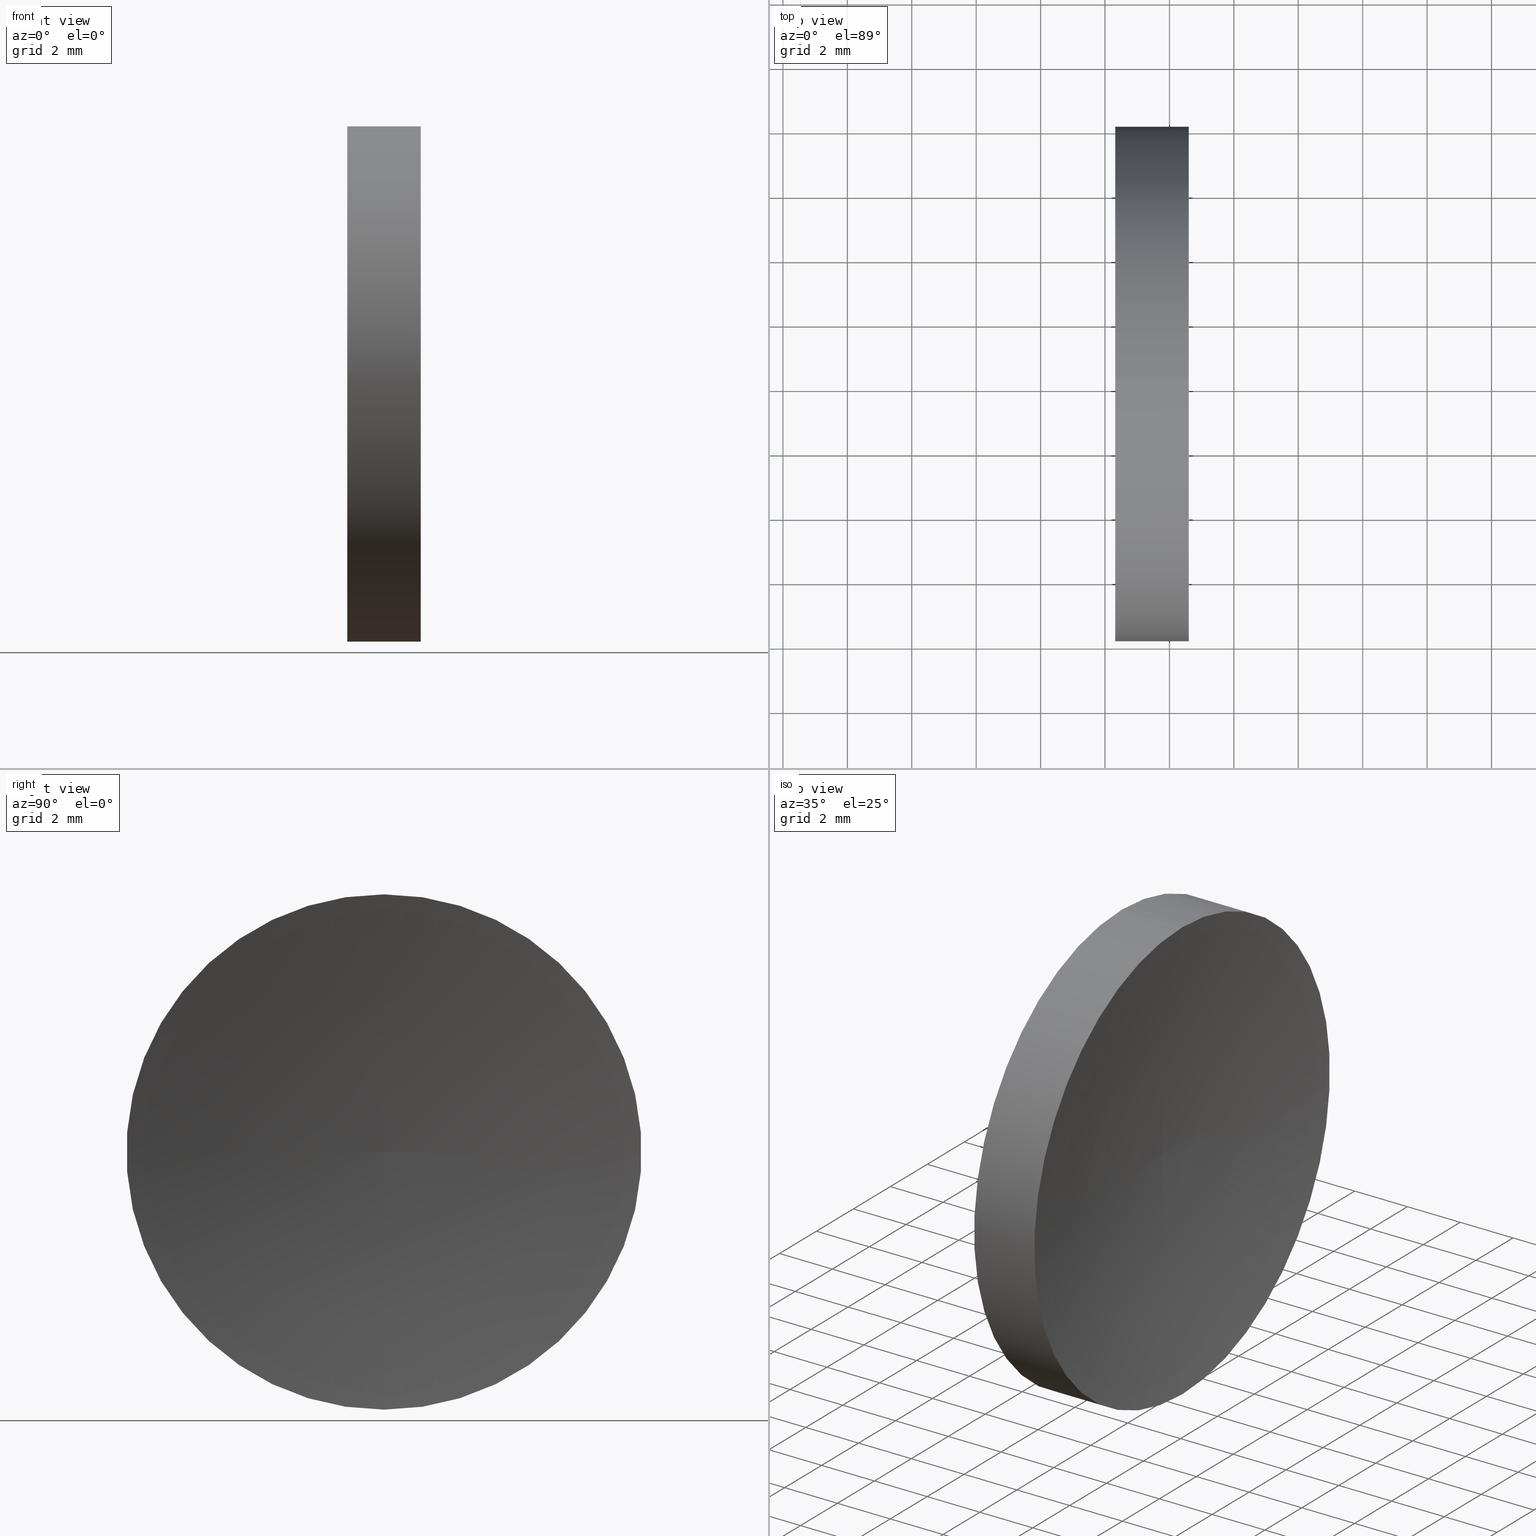
[diagram: canonical four-view strip — front | top / right | iso, engineering-drawing reading convention]
A machine part, canonical four-view strip (front | top / right | iso — engineering-drawing reading convention). The complete STEP part file that produces these views, byte-faithful:
ISO-10303-21;
HEADER;
FILE_DESCRIPTION (( 'STEP AP214' ),
    '1' );
FILE_NAME ('120025.STEP',
    '2019-06-17T01:19:27',
    ( '' ),
    ( '' ),
    'SwSTEP 2.0',
    'SolidWorks 2016',
    '' );
FILE_SCHEMA (( 'AUTOMOTIVE_DESIGN' ));
ENDSEC;

DATA;
#1 = ORIENTED_EDGE ( 'NONE', *, *, #43, .F. ) ;
#2 = COLOUR_RGB ( '',1.000000000000000000, 1.000000000000000000, 1.000000000000000000 ) ;
#3 = PRODUCT_DEFINITION ( 'δ֪', '', #97, #120 ) ;
#4 = AXIS2_PLACEMENT_3D ( 'NONE', #8, #86, #18 ) ;
#5 = ORIENTED_EDGE ( 'NONE', *, *, #160, .F. ) ;
#6 = ORIENTED_EDGE ( 'NONE', *, *, #127, .T. ) ;
#7 = DIRECTION ( 'NONE',  ( 0.0000000000000000000, 0.0000000000000000000, 1.000000000000000000 ) ) ;
#8 = CARTESIAN_POINT ( 'NONE',  ( 44.31915269315436500, 26.08904114919495900, 0.0000000000000000000 ) ) ;
#9 = ORIENTED_EDGE ( 'NONE', *, *, #85, .F. ) ;
#10 = ORIENTED_EDGE ( 'NONE', *, *, #85, .T. ) ;
#11 = COLOUR_RGB ( '',1.000000000000000000, 1.000000000000000000, 1.000000000000000000 ) ;
#12 = ADVANCED_FACE ( 'NONE', ( #69 ), #36, .T. ) ;
#13 = ADVANCED_BREP_SHAPE_REPRESENTATION ( '120025', ( #101, #137 ), #40 ) ;
#14 = CIRCLE ( 'NONE', #67, 41.30000000000000400 ) ;
#15 = TOROIDAL_SURFACE ( 'NONE', #92, 0.01486581670328071500, 41.30000000000000400 ) ;
#16 = AXIS2_PLACEMENT_3D ( 'NONE', #115, #64, #155 ) ;
#17 = ORIENTED_EDGE ( 'NONE', *, *, #127, .F. ) ;
#18 = DIRECTION ( 'NONE',  ( 0.0000000000000000000, 0.0000000000000000000, 1.000000000000000000 ) ) ;
#19 = CARTESIAN_POINT ( 'NONE',  ( 87.11915005658917700, 26.08904114919495900, 0.0000000000000000000 ) ) ;
#20 = AXIS2_PLACEMENT_3D ( 'NONE', #45, #87, #7 ) ;
#21 = SHAPE_DEFINITION_REPRESENTATION ( #132, #13 ) ;
#22 = DIRECTION ( 'NONE',  ( -1.000000000000000000, -0.0000000000000000000, -0.0000000000000000000 ) ) ;
#23 = SURFACE_SIDE_STYLE ('',( #49 ) ) ;
#24 = VERTEX_POINT ( 'NONE', #139 ) ;
#25 = ADVANCED_FACE ( 'NONE', ( #83 ), #15, .F. ) ;
#26 = STYLED_ITEM ( 'NONE', ( #149 ), #13 ) ;
#27 = MECHANICAL_DESIGN_GEOMETRIC_PRESENTATION_REPRESENTATION (  '', ( #166 ), #56 ) ;
#28 = SURFACE_STYLE_FILL_AREA ( #50 ) ;
#29 = DIRECTION ( 'NONE',  ( 1.000000000000000000, 0.0000000000000000000, 0.0000000000000000000 ) ) ;
#30 = DIRECTION ( 'NONE',  ( 0.0000000000000000000, 0.0000000000000000000, 1.000000000000000000 ) ) ;
#31 = AXIS2_PLACEMENT_3D ( 'NONE', #154, #22, #66 ) ;
#32 = CARTESIAN_POINT ( 'NONE',  ( 42.44986111413682300, 26.08904114919495900, 0.0000000000000000000 ) ) ;
#33 = SURFACE_STYLE_USAGE ( .BOTH. , #91 ) ;
#34 = APPLICATION_CONTEXT ( 'automotive_design' ) ;
#35 = CARTESIAN_POINT ( 'NONE',  ( 46.59844384267000800, 26.08904114919495900, 0.0000000000000000000 ) ) ;
#36 = CYLINDRICAL_SURFACE ( 'NONE', #110, 8.000000000000000000 ) ;
#37 = SURFACE_STYLE_USAGE ( .BOTH. , #23 ) ;
#38 = PRODUCT ( '120025', '120025', '', ( #79 ) ) ;
#39 = DIRECTION ( 'NONE',  ( 0.0000000000000000000, -8.400597946618919500E-017, 1.000000000000000000 ) ) ;
#40 =( GEOMETRIC_REPRESENTATION_CONTEXT ( 3 ) GLOBAL_UNCERTAINTY_ASSIGNED_CONTEXT ( ( #106 ) ) GLOBAL_UNIT_ASSIGNED_CONTEXT ( ( #54, #80, #119 ) ) REPRESENTATION_CONTEXT ( 'NONE', 'WORKASPACE' ) );
#41 = UNCERTAINTY_MEASURE_WITH_UNIT (LENGTH_MEASURE( 1.000000000000000100E-005 ), #73, 'distance_accuracy_value', 'NONE');
#42 = VECTOR ( 'NONE', #47, 1000.000000000000000 ) ;
#43 = EDGE_CURVE ( 'NONE', #99, #146, #94, .T. ) ;
#44 = CIRCLE ( 'NONE', #20, 7.999999999999996400 ) ;
#45 = CARTESIAN_POINT ( 'NONE',  ( 46.59844384267000800, 26.08904114919495900, 0.0000000000000000000 ) ) ;
#46 = DIRECTION ( 'NONE',  ( 0.0000000000000000000, 0.0000000000000000000, 1.000000000000000000 ) ) ;
#47 = DIRECTION ( 'NONE',  ( -1.000000000000000000, -0.0000000000000000000, -0.0000000000000000000 ) ) ;
#48 = PRODUCT_RELATED_PRODUCT_CATEGORY ( 'part', '', ( #38 ) ) ;
#49 = SURFACE_STYLE_FILL_AREA ( #68 ) ;
#50 = FILL_AREA_STYLE ('',( #116 ) ) ;
#51 = DIRECTION ( 'NONE',  ( -1.000000000000000000, -0.0000000000000000000, -0.0000000000000000000 ) ) ;
#52 = CYLINDRICAL_SURFACE ( 'NONE', #31, 8.000000000000000000 ) ;
#53 = ORIENTED_EDGE ( 'NONE', *, *, #153, .T. ) ;
#54 =( LENGTH_UNIT ( ) NAMED_UNIT ( * ) SI_UNIT ( .MILLI., .METRE. ) );
#55 = ADVANCED_FACE ( 'NONE', ( #138 ), #124, .F. ) ;
#56 =( GEOMETRIC_REPRESENTATION_CONTEXT ( 3 ) GLOBAL_UNCERTAINTY_ASSIGNED_CONTEXT ( ( #134 ) ) GLOBAL_UNIT_ASSIGNED_CONTEXT ( ( #140, #75, #74 ) ) REPRESENTATION_CONTEXT ( 'NONE', 'WORKASPACE' ) );
#57 = AXIS2_PLACEMENT_3D ( 'NONE', #98, #29, #59 ) ;
#58 = ORIENTED_EDGE ( 'NONE', *, *, #95, .F. ) ;
#59 = DIRECTION ( 'NONE',  ( 0.0000000000000000000, 0.0000000000000000000, -1.000000000000000000 ) ) ;
#60 = CARTESIAN_POINT ( 'NONE',  ( 44.31915269315436500, 26.08904114919495900, -8.000000000000003600 ) ) ;
#61 = EDGE_LOOP ( 'NONE', ( #108, #111, #78 ) ) ;
#62 = PRESENTATION_LAYER_ASSIGNMENT (  '', '', ( #26 ) ) ;
#63 = CARTESIAN_POINT ( 'NONE',  ( 45.81915273204332100, 26.08904114919495900, 0.0000000000000000000 ) ) ;
#64 = DIRECTION ( 'NONE',  ( -1.000000000000000000, -0.0000000000000000000, -0.0000000000000000000 ) ) ;
#65 = DIRECTION ( 'NONE',  ( -1.000000000000000000, -0.0000000000000000000, -0.0000000000000000000 ) ) ;
#66 = DIRECTION ( 'NONE',  ( 0.0000000000000000000, 0.0000000000000000000, 1.000000000000000000 ) ) ;
#67 = AXIS2_PLACEMENT_3D ( 'NONE', #131, #105, #39 ) ;
#68 = FILL_AREA_STYLE ('',( #93 ) ) ;
#69 = FACE_OUTER_BOUND ( 'NONE', #103, .T. ) ;
#70 = CIRCLE ( 'NONE', #100, 41.30000000000000400 ) ;
#71 = EDGE_CURVE ( 'NONE', #24, #136, #70, .T. ) ;
#72 = EDGE_CURVE ( 'NONE', #126, #24, #44, .T. ) ;
#73 =( LENGTH_UNIT ( ) NAMED_UNIT ( * ) SI_UNIT ( .MILLI., .METRE. ) );
#74 =( NAMED_UNIT ( * ) SI_UNIT ( $, .STERADIAN. ) SOLID_ANGLE_UNIT ( ) );
#75 =( NAMED_UNIT ( * ) PLANE_ANGLE_UNIT ( ) SI_UNIT ( $, .RADIAN. ) );
#76 = ORIENTED_EDGE ( 'NONE', *, *, #72, .T. ) ;
#77 = DIRECTION ( 'NONE',  ( 0.0000000000000000000, 0.0000000000000000000, 1.000000000000000000 ) ) ;
#78 = ORIENTED_EDGE ( 'NONE', *, *, #71, .F. ) ;
#79 = PRODUCT_CONTEXT ( 'NONE', #163, 'mechanical' ) ;
#80 =( NAMED_UNIT ( * ) PLANE_ANGLE_UNIT ( ) SI_UNIT ( $, .RADIAN. ) );
#81 = CIRCLE ( 'NONE', #109, 7.999999999999996400 ) ;
#82 =( GEOMETRIC_REPRESENTATION_CONTEXT ( 3 ) GLOBAL_UNCERTAINTY_ASSIGNED_CONTEXT ( ( #41 ) ) GLOBAL_UNIT_ASSIGNED_CONTEXT ( ( #73, #129, #156 ) ) REPRESENTATION_CONTEXT ( 'NONE', 'WORKASPACE' ) );
#83 = FACE_OUTER_BOUND ( 'NONE', #61, .T. ) ;
#84 = ORIENTED_EDGE ( 'NONE', *, *, #95, .T. ) ;
#85 = EDGE_CURVE ( 'NONE', #126, #99, #104, .T. ) ;
#86 = DIRECTION ( 'NONE',  ( -1.000000000000000000, -0.0000000000000000000, -0.0000000000000000000 ) ) ;
#87 = DIRECTION ( 'NONE',  ( -1.000000000000000000, -0.0000000000000000000, -0.0000000000000000000 ) ) ;
#88 = DIRECTION ( 'NONE',  ( -1.000000000000000000, -0.0000000000000000000, -0.0000000000000000000 ) ) ;
#89 = DIRECTION ( 'NONE',  ( -1.000000000000000000, -0.0000000000000000000, -0.0000000000000000000 ) ) ;
#90 = CARTESIAN_POINT ( 'NONE',  ( 87.11915005658917700, 26.08904114919495900, 0.0000000000000000000 ) ) ;
#91 = SURFACE_SIDE_STYLE ('',( #28 ) ) ;
#92 = AXIS2_PLACEMENT_3D ( 'NONE', #90, #88, #46 ) ;
#93 = FILL_AREA_STYLE_COLOUR ( '', #11 ) ;
#94 = CIRCLE ( 'NONE', #4, 8.000000000000003600 ) ;
#95 = EDGE_CURVE ( 'NONE', #24, #146, #107, .T. ) ;
#96 = PRESENTATION_LAYER_ASSIGNMENT (  '', '', ( #166 ) ) ;
#97 = PRODUCT_DEFINITION_FORMATION_WITH_SPECIFIED_SOURCE ( '�κ�', '', #38, .NOT_KNOWN. ) ;
#98 = CARTESIAN_POINT ( 'NONE',  ( 44.31915269315436500, 26.08904114919495900, 0.0000000000000000000 ) ) ;
#99 = VERTEX_POINT ( 'NONE', #60 ) ;
#100 = AXIS2_PLACEMENT_3D ( 'NONE', #133, #112, #135 ) ;
#101 = MANIFOLD_SOLID_BREP ( '��ת1', #147 ) ;
#102 = DIRECTION ( 'NONE',  ( 0.0000000000000000000, 0.0000000000000000000, 1.000000000000000000 ) ) ;
#103 = EDGE_LOOP ( 'NONE', ( #6, #10, #114, #58 ) ) ;
#104 = LINE ( 'NONE', #161, #42 ) ;
#105 = DIRECTION ( 'NONE',  ( -0.0000000000000000000, 1.000000000000000000, 1.224646799147353200E-016 ) ) ;
#106 = UNCERTAINTY_MEASURE_WITH_UNIT (LENGTH_MEASURE( 1.000000000000000100E-005 ), #54, 'distance_accuracy_value', 'NONE');
#107 = LINE ( 'NONE', #125, #118 ) ;
#108 = ORIENTED_EDGE ( 'NONE', *, *, #72, .F. ) ;
#109 = AXIS2_PLACEMENT_3D ( 'NONE', #35, #65, #77 ) ;
#110 = AXIS2_PLACEMENT_3D ( 'NONE', #32, #89, #30 ) ;
#111 = ORIENTED_EDGE ( 'NONE', *, *, #160, .T. ) ;
#112 = DIRECTION ( 'NONE',  ( 0.0000000000000000000, -1.000000000000000000, 0.0000000000000000000 ) ) ;
#113 = FACE_OUTER_BOUND ( 'NONE', #152, .T. ) ;
#114 = ORIENTED_EDGE ( 'NONE', *, *, #153, .F. ) ;
#115 = CARTESIAN_POINT ( 'NONE',  ( 44.31915269315436500, 26.08904114919495900, 0.0000000000000000000 ) ) ;
#116 = FILL_AREA_STYLE_COLOUR ( '', #2 ) ;
#117 = APPLICATION_PROTOCOL_DEFINITION ( 'draft international standard', 'automotive_design', 1998, #34 ) ;
#118 = VECTOR ( 'NONE', #150, 1000.000000000000000 ) ;
#119 =( NAMED_UNIT ( * ) SI_UNIT ( $, .STERADIAN. ) SOLID_ANGLE_UNIT ( ) );
#120 = PRODUCT_DEFINITION_CONTEXT ( 'detailed design', #34, 'design' ) ;
#121 = MECHANICAL_DESIGN_GEOMETRIC_PRESENTATION_REPRESENTATION (  '', ( #26 ), #82 ) ;
#122 = ADVANCED_FACE ( 'NONE', ( #113 ), #123, .F. ) ;
#123 = TOROIDAL_SURFACE ( 'NONE', #145, 0.01486581670328071500, 41.30000000000000400 ) ;
#124 = PLANE ( 'NONE',  #57 ) ;
#125 = CARTESIAN_POINT ( 'NONE',  ( 42.44986111413682300, 26.08904114919495900, 8.000000000000000000 ) ) ;
#126 = VERTEX_POINT ( 'NONE', #128 ) ;
#127 = EDGE_CURVE ( 'NONE', #24, #126, #81, .T. ) ;
#128 = CARTESIAN_POINT ( 'NONE',  ( 46.59844384267000800, 26.08904114919495900, -7.999999999999979600 ) ) ;
#129 =( NAMED_UNIT ( * ) PLANE_ANGLE_UNIT ( ) SI_UNIT ( $, .RADIAN. ) );
#130 = CARTESIAN_POINT ( 'NONE',  ( 0.0000000000000000000, 0.0000000000000000000, 0.0000000000000000000 ) ) ;
#131 = CARTESIAN_POINT ( 'NONE',  ( 87.11915005658917700, 26.08904114919495900, -0.01486581670328071500 ) ) ;
#132 = PRODUCT_DEFINITION_SHAPE ( 'NONE', 'NONE',  #3 ) ;
#133 = CARTESIAN_POINT ( 'NONE',  ( 87.11915005658917700, 26.08904114919495900, 0.01486581670328071500 ) ) ;
#134 = UNCERTAINTY_MEASURE_WITH_UNIT (LENGTH_MEASURE( 1.000000000000000100E-005 ), #140, 'distance_accuracy_value', 'NONE');
#135 = DIRECTION ( 'NONE',  ( 0.0000000000000000000, 0.0000000000000000000, -1.000000000000000000 ) ) ;
#136 = VERTEX_POINT ( 'NONE', #63 ) ;
#137 = AXIS2_PLACEMENT_3D ( 'NONE', #130, #143, #162 ) ;
#138 = FACE_OUTER_BOUND ( 'NONE', #148, .T. ) ;
#139 = CARTESIAN_POINT ( 'NONE',  ( 46.59844384267000800, 26.08904114919495900, 7.999999999999979600 ) ) ;
#140 =( LENGTH_UNIT ( ) NAMED_UNIT ( * ) SI_UNIT ( .MILLI., .METRE. ) );
#141 = ORIENTED_EDGE ( 'NONE', *, *, #43, .T. ) ;
#142 = EDGE_LOOP ( 'NONE', ( #9, #76, #84, #1 ) ) ;
#143 = DIRECTION ( 'NONE',  ( 0.0000000000000000000, 0.0000000000000000000, 1.000000000000000000 ) ) ;
#144 = ADVANCED_FACE ( 'NONE', ( #159 ), #52, .T. ) ;
#145 = AXIS2_PLACEMENT_3D ( 'NONE', #19, #51, #102 ) ;
#146 = VERTEX_POINT ( 'NONE', #157 ) ;
#147 = CLOSED_SHELL ( 'NONE', ( #12, #25, #122, #144, #55 ) ) ;
#148 = EDGE_LOOP ( 'NONE', ( #53, #141 ) ) ;
#149 = PRESENTATION_STYLE_ASSIGNMENT (( #37 ) ) ;
#150 = DIRECTION ( 'NONE',  ( -1.000000000000000000, -0.0000000000000000000, -0.0000000000000000000 ) ) ;
#151 = CIRCLE ( 'NONE', #16, 8.000000000000003600 ) ;
#152 = EDGE_LOOP ( 'NONE', ( #5, #17, #165 ) ) ;
#153 = EDGE_CURVE ( 'NONE', #146, #99, #151, .T. ) ;
#154 = CARTESIAN_POINT ( 'NONE',  ( 42.44986111413682300, 26.08904114919495900, 0.0000000000000000000 ) ) ;
#155 = DIRECTION ( 'NONE',  ( 0.0000000000000000000, 0.0000000000000000000, 1.000000000000000000 ) ) ;
#156 =( NAMED_UNIT ( * ) SI_UNIT ( $, .STERADIAN. ) SOLID_ANGLE_UNIT ( ) );
#157 = CARTESIAN_POINT ( 'NONE',  ( 44.31915269315436500, 26.08904114919495900, 8.000000000000003600 ) ) ;
#158 = APPLICATION_PROTOCOL_DEFINITION ( 'draft international standard', 'automotive_design', 1998, #163 ) ;
#159 = FACE_OUTER_BOUND ( 'NONE', #142, .T. ) ;
#160 = EDGE_CURVE ( 'NONE', #126, #136, #14, .T. ) ;
#161 = CARTESIAN_POINT ( 'NONE',  ( 42.44986111413682300, 26.08904114919495900, -8.000000000000000000 ) ) ;
#162 = DIRECTION ( 'NONE',  ( 1.000000000000000000, 0.0000000000000000000, 0.0000000000000000000 ) ) ;
#163 = APPLICATION_CONTEXT ( 'automotive_design' ) ;
#164 = PRESENTATION_STYLE_ASSIGNMENT (( #33 ) ) ;
#165 = ORIENTED_EDGE ( 'NONE', *, *, #71, .T. ) ;
#166 = STYLED_ITEM ( 'NONE', ( #164 ), #101 ) ;
ENDSEC;
END-ISO-10303-21;
